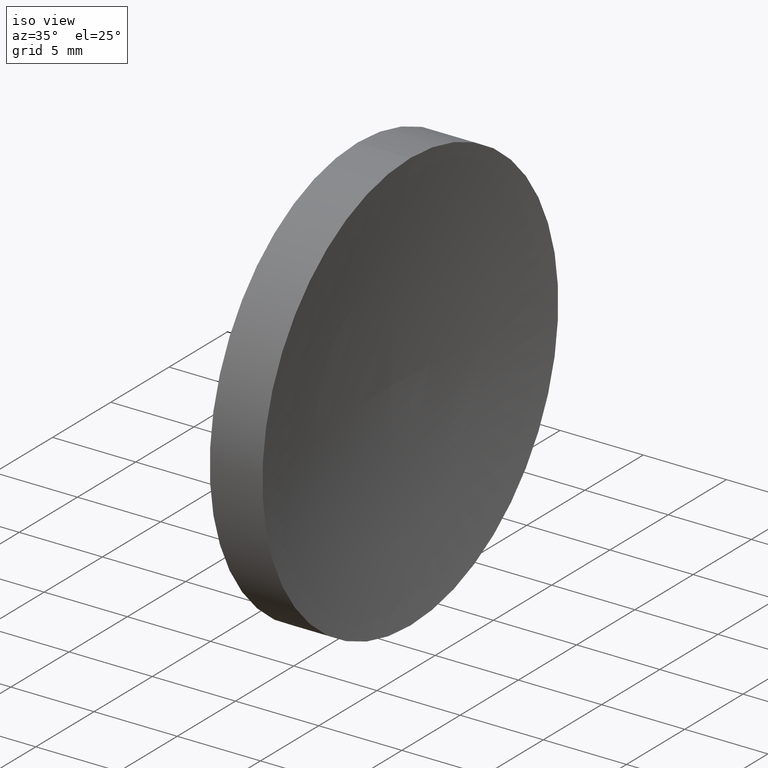
[diagram: clean part render]
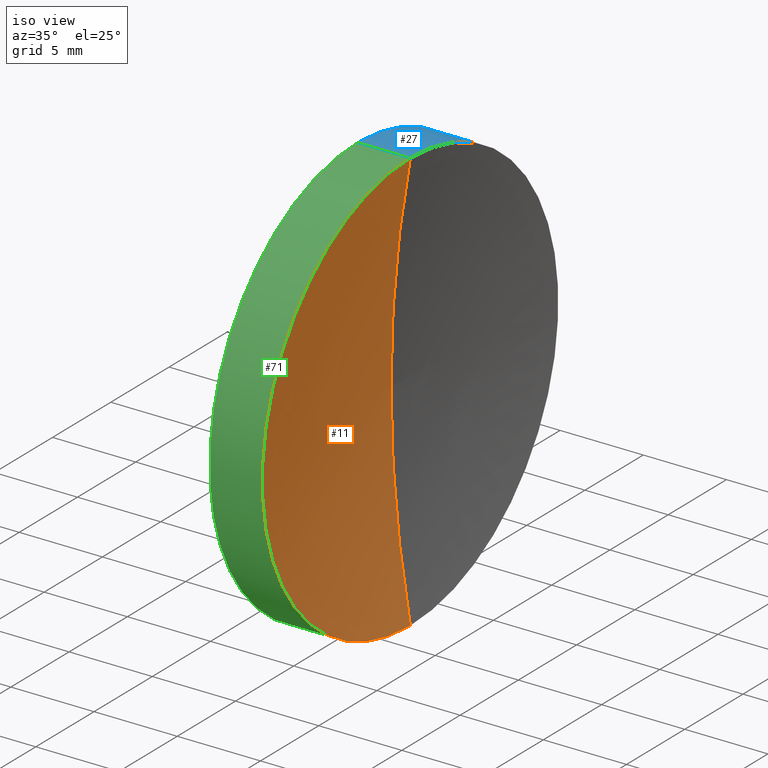
[diagram: same view with three faces highlighted in distinct colors, each labeled with its STEP entity id]
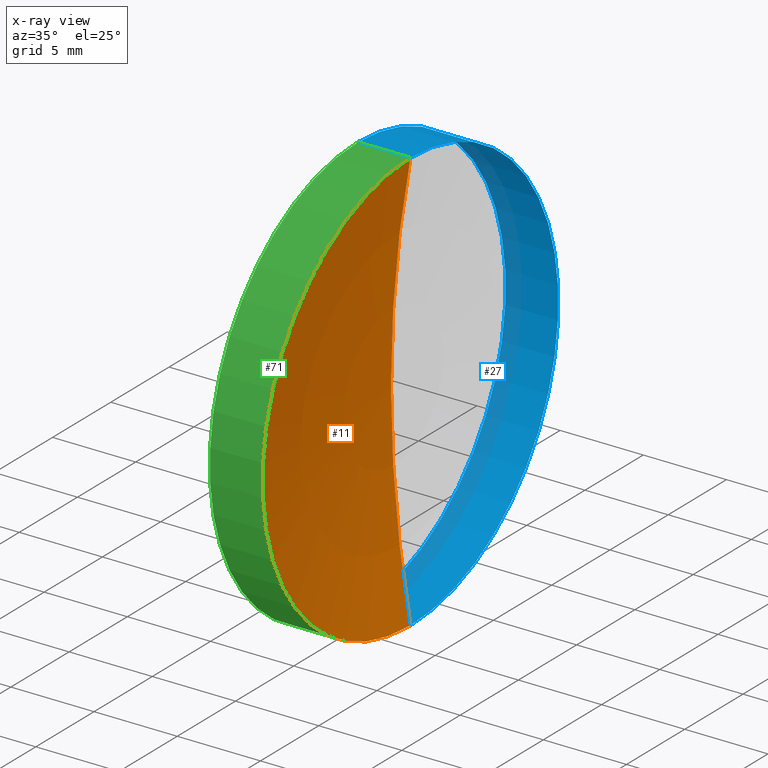
[diagram: x-ray of the same camera — body ghosted, the three highlighted faces saturated]
A machine part, iso view with three faces highlighted in distinct colors.
The next image is the same camera in x-ray (body ghosted, the three faces saturated) — at least one of them is partly hidden behind the body in this view.
Their STEP definitions:

[orange] entity #11 — the highlighted toroidal blend (fillet) surface has major radius 0.0261 mm and minor (blend) radius 70.1 mm.
#7 = DIRECTION ( 'NONE',  ( 0.0000000000000000000, 0.0000000000000000000, 1.000000000000000000 ) ) ;
#8 = CIRCLE ( 'NONE', #137, 70.09999999999999400 ) ;
#9 = CARTESIAN_POINT ( 'NONE',  ( 122.6716689517454700, 71.19398908659370300, 0.0000000000000000000 ) ) ;
#11 = ADVANCED_FACE ( 'NONE', ( #150 ), #147, .F. ) ;
#19 = CARTESIAN_POINT ( 'NONE',  ( 122.6716689517454700, 71.19398908659370300, -12.69999999999999800 ) ) ;
#22 = CARTESIAN_POINT ( 'NONE',  ( 191.6068291606491400, 71.19398908659370300, -0.02610258377575003200 ) ) ;
#24 = DIRECTION ( 'NONE',  ( -1.000000000000000000, -0.0000000000000000000, -0.0000000000000000000 ) ) ;
#26 = VERTEX_POINT ( 'NONE', #92 ) ;
#36 = ORIENTED_EDGE ( 'NONE', *, *, #40, .T. ) ;
#40 = EDGE_CURVE ( 'NONE', #145, #135, #45, .T. ) ;
#44 = AXIS2_PLACEMENT_3D ( 'NONE', #107, #82, #134 ) ;
#45 = CIRCLE ( 'NONE', #76, 70.09999999999999400 ) ;
#46 = AXIS2_PLACEMENT_3D ( 'NONE', #9, #24, #7 ) ;
#47 = DIRECTION ( 'NONE',  ( 0.0000000000000000000, 0.0000000000000000000, -1.000000000000000000 ) ) ;
#62 = EDGE_LOOP ( 'NONE', ( #102, #36, #155 ) ) ;
#74 = CIRCLE ( 'NONE', #46, 12.70000000000000300 ) ;
#76 = AXIS2_PLACEMENT_3D ( 'NONE', #81, #159, #149 ) ;
#81 = CARTESIAN_POINT ( 'NONE',  ( 191.6068291606491400, 71.19398908659370300, 0.02610258377575003200 ) ) ;
#82 = DIRECTION ( 'NONE',  ( -1.000000000000000000, -0.0000000000000000000, -0.0000000000000000000 ) ) ;
#86 = DIRECTION ( 'NONE',  ( 0.0000000000000000000, -1.000000000000000000, 0.0000000000000000000 ) ) ;
#92 = CARTESIAN_POINT ( 'NONE',  ( 122.6716689517454700, 71.19398908659370300, 12.69999999999999800 ) ) ;
#102 = ORIENTED_EDGE ( 'NONE', *, *, #127, .F. ) ;
#107 = CARTESIAN_POINT ( 'NONE',  ( 191.6068291606491400, 71.19398908659370300, 0.0000000000000000000 ) ) ;
#127 = EDGE_CURVE ( 'NONE', #145, #26, #74, .T. ) ;
#134 = DIRECTION ( 'NONE',  ( 0.0000000000000000000, 0.0000000000000000000, 1.000000000000000000 ) ) ;
#135 = VERTEX_POINT ( 'NONE', #161 ) ;
#137 = AXIS2_PLACEMENT_3D ( 'NONE', #22, #86, #47 ) ;
#145 = VERTEX_POINT ( 'NONE', #19 ) ;
#147 = TOROIDAL_SURFACE ( 'NONE', #44, -0.02610258377575003200, 70.09999999999999400 ) ;
#149 = DIRECTION ( 'NONE',  ( 0.0000000000000000000, -1.979712954039152300E-016, 1.000000000000000000 ) ) ;
#150 = FACE_OUTER_BOUND ( 'NONE', #62, .T. ) ;
#154 = EDGE_CURVE ( 'NONE', #26, #135, #8, .T. ) ;
#155 = ORIENTED_EDGE ( 'NONE', *, *, #154, .F. ) ;
#159 = DIRECTION ( 'NONE',  ( -0.0000000000000000000, 1.000000000000000000, 1.224646799147353200E-016 ) ) ;
#161 = CARTESIAN_POINT ( 'NONE',  ( 121.5068340204558800, 71.19398908659370300, 0.0000000000000000000 ) ) ;

[blue] entity #27 — the highlighted cylindrical surface (partial cylindrical patch) has radius 12.7 mm, axis along (-1, -0, -0).
#2 = CARTESIAN_POINT ( 'NONE',  ( 119.5068341785477100, 71.19398908659370300, 12.70000000000000300 ) ) ;
#3 = EDGE_LOOP ( 'NONE', ( #104, #115, #54, #50 ) ) ;
#4 = CARTESIAN_POINT ( 'NONE',  ( 122.6716689517454700, 71.19398908659370300, 0.0000000000000000000 ) ) ;
#13 = LINE ( 'NONE', #106, #140 ) ;
#17 = CIRCLE ( 'NONE', #105, 12.70000000000000300 ) ;
#19 = CARTESIAN_POINT ( 'NONE',  ( 122.6716689517454700, 71.19398908659370300, -12.69999999999999800 ) ) ;
#26 = VERTEX_POINT ( 'NONE', #92 ) ;
#27 = ADVANCED_FACE ( 'NONE', ( #113 ), #87, .T. ) ;
#30 = DIRECTION ( 'NONE',  ( -1.000000000000000000, -0.0000000000000000000, -0.0000000000000000000 ) ) ;
#35 = EDGE_CURVE ( 'NONE', #48, #83, #17, .T. ) ;
#48 = VERTEX_POINT ( 'NONE', #2 ) ;
#50 = ORIENTED_EDGE ( 'NONE', *, *, #77, .F. ) ;
#54 = ORIENTED_EDGE ( 'NONE', *, *, #35, .F. ) ;
#55 = DIRECTION ( 'NONE',  ( 0.0000000000000000000, 0.0000000000000000000, 1.000000000000000000 ) ) ;
#56 = DIRECTION ( 'NONE',  ( 0.0000000000000000000, 0.0000000000000000000, 1.000000000000000000 ) ) ;
#59 = EDGE_CURVE ( 'NONE', #26, #145, #157, .T. ) ;
#65 = DIRECTION ( 'NONE',  ( -1.000000000000000000, -0.0000000000000000000, -0.0000000000000000000 ) ) ;
#66 = DIRECTION ( 'NONE',  ( -1.000000000000000000, -0.0000000000000000000, -0.0000000000000000000 ) ) ;
#67 = CARTESIAN_POINT ( 'NONE',  ( 111.9552297575605700, 71.19398908659370300, 0.0000000000000000000 ) ) ;
#68 = VECTOR ( 'NONE', #66, 1000.000000000000000 ) ;
#69 = EDGE_CURVE ( 'NONE', #145, #83, #90, .T. ) ;
#77 = EDGE_CURVE ( 'NONE', #26, #48, #13, .T. ) ;
#83 = VERTEX_POINT ( 'NONE', #94 ) ;
#87 = CYLINDRICAL_SURFACE ( 'NONE', #98, 12.70000000000000300 ) ;
#90 = LINE ( 'NONE', #96, #68 ) ;
#92 = CARTESIAN_POINT ( 'NONE',  ( 122.6716689517454700, 71.19398908659370300, 12.69999999999999800 ) ) ;
#93 = DIRECTION ( 'NONE',  ( -1.000000000000000000, -0.0000000000000000000, -0.0000000000000000000 ) ) ;
#94 = CARTESIAN_POINT ( 'NONE',  ( 119.5068341785477100, 71.19398908659370300, -12.70000000000000300 ) ) ;
#96 = CARTESIAN_POINT ( 'NONE',  ( 111.9552297575605700, 71.19398908659370300, -12.70000000000000300 ) ) ;
#98 = AXIS2_PLACEMENT_3D ( 'NONE', #67, #30, #56 ) ;
#104 = ORIENTED_EDGE ( 'NONE', *, *, #59, .T. ) ;
#105 = AXIS2_PLACEMENT_3D ( 'NONE', #118, #65, #148 ) ;
#106 = CARTESIAN_POINT ( 'NONE',  ( 111.9552297575605700, 71.19398908659370300, 12.70000000000000300 ) ) ;
#112 = AXIS2_PLACEMENT_3D ( 'NONE', #4, #133, #55 ) ;
#113 = FACE_OUTER_BOUND ( 'NONE', #3, .T. ) ;
#115 = ORIENTED_EDGE ( 'NONE', *, *, #69, .T. ) ;
#118 = CARTESIAN_POINT ( 'NONE',  ( 119.5068341785477100, 71.19398908659370300, 0.0000000000000000000 ) ) ;
#133 = DIRECTION ( 'NONE',  ( -1.000000000000000000, -0.0000000000000000000, -0.0000000000000000000 ) ) ;
#140 = VECTOR ( 'NONE', #93, 1000.000000000000000 ) ;
#145 = VERTEX_POINT ( 'NONE', #19 ) ;
#148 = DIRECTION ( 'NONE',  ( 0.0000000000000000000, 0.0000000000000000000, 1.000000000000000000 ) ) ;
#157 = CIRCLE ( 'NONE', #112, 12.70000000000000300 ) ;

[green] entity #71 — the highlighted cylindrical surface (partial cylindrical patch) has radius 12.7 mm, axis along (-1, -0, -0).
#1 = ORIENTED_EDGE ( 'NONE', *, *, #77, .T. ) ;
#2 = CARTESIAN_POINT ( 'NONE',  ( 119.5068341785477100, 71.19398908659370300, 12.70000000000000300 ) ) ;
#7 = DIRECTION ( 'NONE',  ( 0.0000000000000000000, 0.0000000000000000000, 1.000000000000000000 ) ) ;
#9 = CARTESIAN_POINT ( 'NONE',  ( 122.6716689517454700, 71.19398908659370300, 0.0000000000000000000 ) ) ;
#10 = ORIENTED_EDGE ( 'NONE', *, *, #69, .F. ) ;
#13 = LINE ( 'NONE', #106, #140 ) ;
#15 = EDGE_LOOP ( 'NONE', ( #10, #39, #1, #110 ) ) ;
#19 = CARTESIAN_POINT ( 'NONE',  ( 122.6716689517454700, 71.19398908659370300, -12.69999999999999800 ) ) ;
#24 = DIRECTION ( 'NONE',  ( -1.000000000000000000, -0.0000000000000000000, -0.0000000000000000000 ) ) ;
#26 = VERTEX_POINT ( 'NONE', #92 ) ;
#29 = AXIS2_PLACEMENT_3D ( 'NONE', #41, #136, #117 ) ;
#31 = CIRCLE ( 'NONE', #53, 12.70000000000000300 ) ;
#39 = ORIENTED_EDGE ( 'NONE', *, *, #127, .T. ) ;
#41 = CARTESIAN_POINT ( 'NONE',  ( 111.9552297575605700, 71.19398908659370300, 0.0000000000000000000 ) ) ;
#46 = AXIS2_PLACEMENT_3D ( 'NONE', #9, #24, #7 ) ;
#48 = VERTEX_POINT ( 'NONE', #2 ) ;
#51 = EDGE_CURVE ( 'NONE', #83, #48, #31, .T. ) ;
#53 = AXIS2_PLACEMENT_3D ( 'NONE', #162, #119, #79 ) ;
#66 = DIRECTION ( 'NONE',  ( -1.000000000000000000, -0.0000000000000000000, -0.0000000000000000000 ) ) ;
#68 = VECTOR ( 'NONE', #66, 1000.000000000000000 ) ;
#69 = EDGE_CURVE ( 'NONE', #145, #83, #90, .T. ) ;
#71 = ADVANCED_FACE ( 'NONE', ( #73 ), #130, .T. ) ;
#73 = FACE_OUTER_BOUND ( 'NONE', #15, .T. ) ;
#74 = CIRCLE ( 'NONE', #46, 12.70000000000000300 ) ;
#77 = EDGE_CURVE ( 'NONE', #26, #48, #13, .T. ) ;
#79 = DIRECTION ( 'NONE',  ( 0.0000000000000000000, 0.0000000000000000000, 1.000000000000000000 ) ) ;
#83 = VERTEX_POINT ( 'NONE', #94 ) ;
#90 = LINE ( 'NONE', #96, #68 ) ;
#92 = CARTESIAN_POINT ( 'NONE',  ( 122.6716689517454700, 71.19398908659370300, 12.69999999999999800 ) ) ;
#93 = DIRECTION ( 'NONE',  ( -1.000000000000000000, -0.0000000000000000000, -0.0000000000000000000 ) ) ;
#94 = CARTESIAN_POINT ( 'NONE',  ( 119.5068341785477100, 71.19398908659370300, -12.70000000000000300 ) ) ;
#96 = CARTESIAN_POINT ( 'NONE',  ( 111.9552297575605700, 71.19398908659370300, -12.70000000000000300 ) ) ;
#106 = CARTESIAN_POINT ( 'NONE',  ( 111.9552297575605700, 71.19398908659370300, 12.70000000000000300 ) ) ;
#110 = ORIENTED_EDGE ( 'NONE', *, *, #51, .F. ) ;
#117 = DIRECTION ( 'NONE',  ( 0.0000000000000000000, 0.0000000000000000000, 1.000000000000000000 ) ) ;
#119 = DIRECTION ( 'NONE',  ( -1.000000000000000000, -0.0000000000000000000, -0.0000000000000000000 ) ) ;
#127 = EDGE_CURVE ( 'NONE', #145, #26, #74, .T. ) ;
#130 = CYLINDRICAL_SURFACE ( 'NONE', #29, 12.70000000000000300 ) ;
#136 = DIRECTION ( 'NONE',  ( -1.000000000000000000, -0.0000000000000000000, -0.0000000000000000000 ) ) ;
#140 = VECTOR ( 'NONE', #93, 1000.000000000000000 ) ;
#145 = VERTEX_POINT ( 'NONE', #19 ) ;
#162 = CARTESIAN_POINT ( 'NONE',  ( 119.5068341785477100, 71.19398908659370300, 0.0000000000000000000 ) ) ;